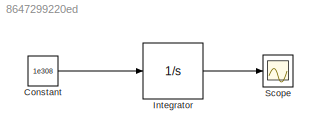
MODEL slx_8647299220ed
KIND model
BLOCK [Constant] Constant
  Value = 1e308
BLOCK [Integrator] Integrator
  AttributesFormatString = InitVal = %<InitialCondition>
  InitialCondition = 1e308
  Ports = [1, 1]
BLOCK [Scope] Scope
  DataFormat = StructureWithTime
  Floating = off
  NumInputPorts = 1
  Ports = [1]
  SampleTime = 0
  ShowLegends = off
LINE Constant:1 -> Integrator:1
LINE Integrator:1 -> Scope:1
